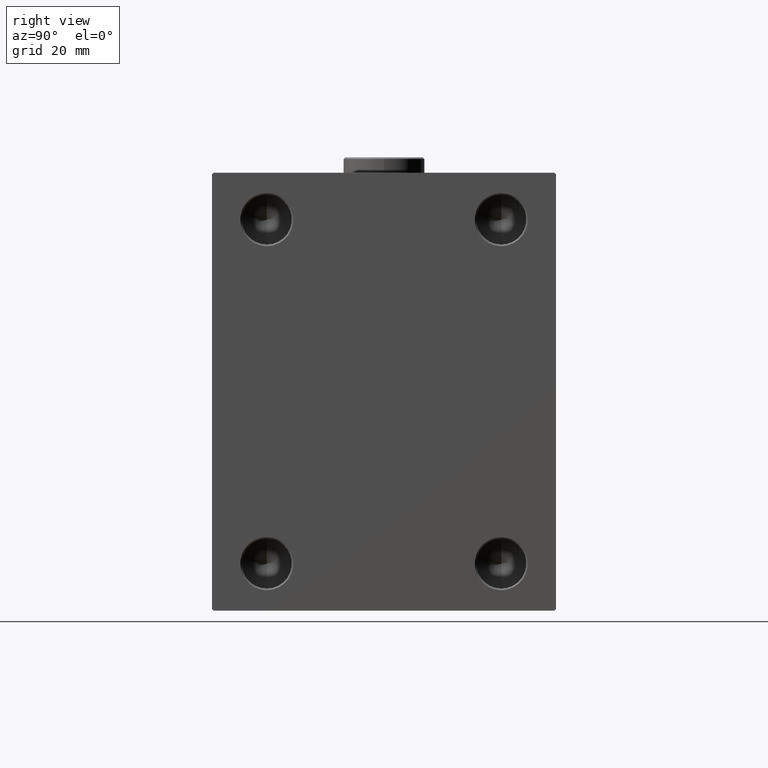
[diagram: clean part render]
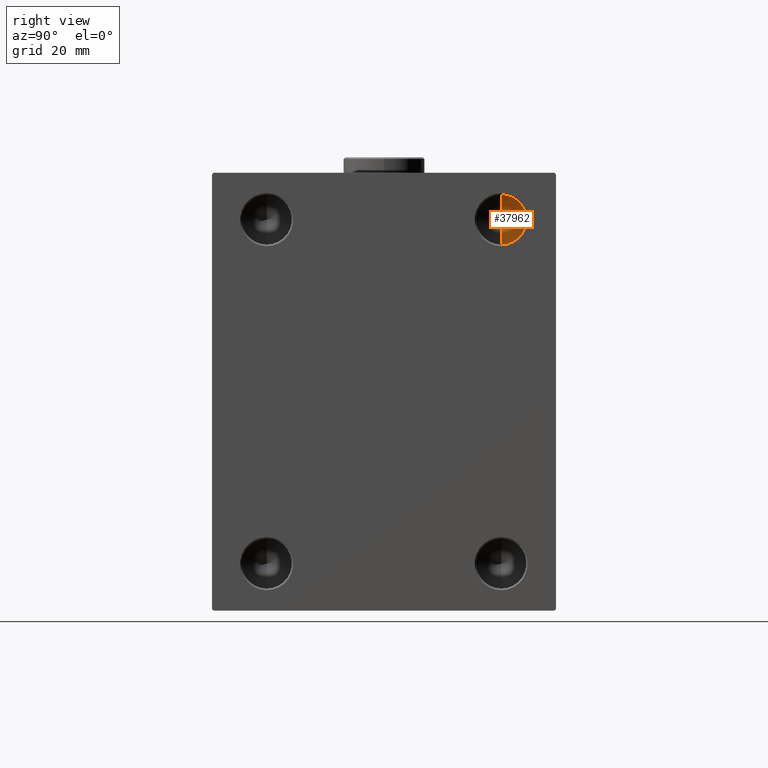
[diagram: same view with one face highlighted and labeled with its STEP entity id]
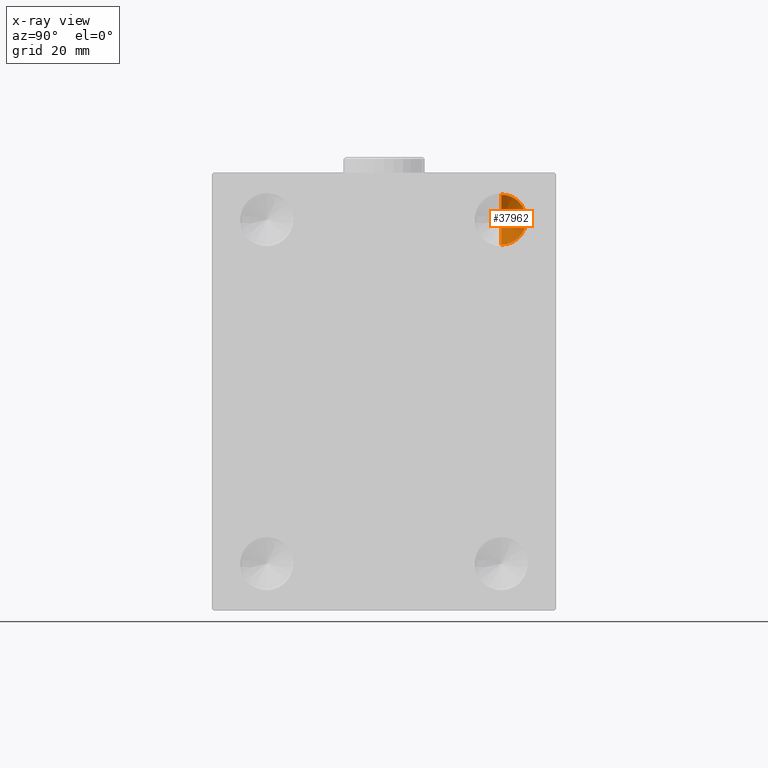
[diagram: x-ray of the same camera — body ghosted, the highlighted face saturated]
A machine part, right view. The second image highlights one B-rep face of the part: STEP entity #37962.
The next image is the same camera in x-ray: the body ghosted, the highlighted face saturated — about 0% of this face is hidden behind the body in this view.
In plain terms, the highlighted conical surface has half-angle 59 deg.
Its self-contained STEP definition (entity closure, byte-faithful):
#93 = ORIENTED_EDGE ( 'NONE', *, *, #3592, .T. ) ;
#113 = DIRECTION ( 'NONE',  ( 0.5150380749100550437, 0.000000000000000000, 0.8571673007021117785 ) ) ;
#1413 = CARTESIAN_POINT ( 'NONE',  ( 98.19311504777952848, 37.49999999999999289, 55.00000000000000711 ) ) ;
#2471 = AXIS2_PLACEMENT_3D ( 'NONE', #17767, #22136, #35555 ) ;
#3223 = AXIS2_PLACEMENT_3D ( 'NONE', #44627, #12971, #44400 ) ;
#3592 = EDGE_CURVE ( 'NONE', #44496, #43339, #35682, .T. ) ;
#7213 = EDGE_LOOP ( 'NONE', ( #41499, #93, #40067 ) ) ;
#8327 = EDGE_CURVE ( 'NONE', #44496, #16744, #24606, .T. ) ;
#8359 = CARTESIAN_POINT ( 'NONE',  ( 103.0000000000000142, 37.50000000000000000, 47.00000000000001421 ) ) ;
#10294 = VECTOR ( 'NONE', #113, 1000.000000000000000 ) ;
#11419 = CARTESIAN_POINT ( 'NONE',  ( 103.0000000000000142, 37.50000000000000000, 47.00000000000001421 ) ) ;
#12971 = DIRECTION ( 'NONE',  ( 1.000000000000000000, -0.000000000000000000, -0.000000000000000000 ) ) ;
#16744 = VERTEX_POINT ( 'NONE', #33037 ) ;
#17767 = CARTESIAN_POINT ( 'NONE',  ( 103.0000000000000142, 37.50000000000000000, 55.00000000000000711 ) ) ;
#21368 = CARTESIAN_POINT ( 'NONE',  ( 103.0000000000000142, 37.50000000000000000, 63.00000000000000000 ) ) ;
#22136 = DIRECTION ( 'NONE',  ( -1.000000000000000000, 0.000000000000000000, 0.000000000000000000 ) ) ;
#22374 = CIRCLE ( 'NONE', #2471, 7.999999999999992895 ) ;
#24606 = LINE ( 'NONE', #21368, #10294 ) ;
#33037 = CARTESIAN_POINT ( 'NONE',  ( 103.0000000000000142, 37.50000000000000000, 63.00000000000000000 ) ) ;
#33263 = EDGE_CURVE ( 'NONE', #16744, #43339, #22374, .T. ) ;
#35555 = DIRECTION ( 'NONE',  ( 0.000000000000000000, 0.000000000000000000, 1.000000000000000000 ) ) ;
#35682 = LINE ( 'NONE', #11419, #38329 ) ;
#37962 = ADVANCED_FACE ( 'NONE', ( #40708 ), #42321, .F. ) ;
#38329 = VECTOR ( 'NONE', #39370, 1000.000000000000000 ) ;
#39370 = DIRECTION ( 'NONE',  ( 0.5150380749100550437, -1.049727191138617956E-16, -0.8571673007021117785 ) ) ;
#40067 = ORIENTED_EDGE ( 'NONE', *, *, #33263, .F. ) ;
#40708 = FACE_OUTER_BOUND ( 'NONE', #7213, .T. ) ;
#41499 = ORIENTED_EDGE ( 'NONE', *, *, #8327, .F. ) ;
#42321 = CONICAL_SURFACE ( 'NONE', #3223, 7.999999999999992895, 1.029744258676653423 ) ;
#43339 = VERTEX_POINT ( 'NONE', #8359 ) ;
#44400 = DIRECTION ( 'NONE',  ( 0.000000000000000000, 0.000000000000000000, 1.000000000000000000 ) ) ;
#44496 = VERTEX_POINT ( 'NONE', #1413 ) ;
#44627 = CARTESIAN_POINT ( 'NONE',  ( 103.0000000000000142, 37.50000000000000000, 55.00000000000000711 ) ) ;